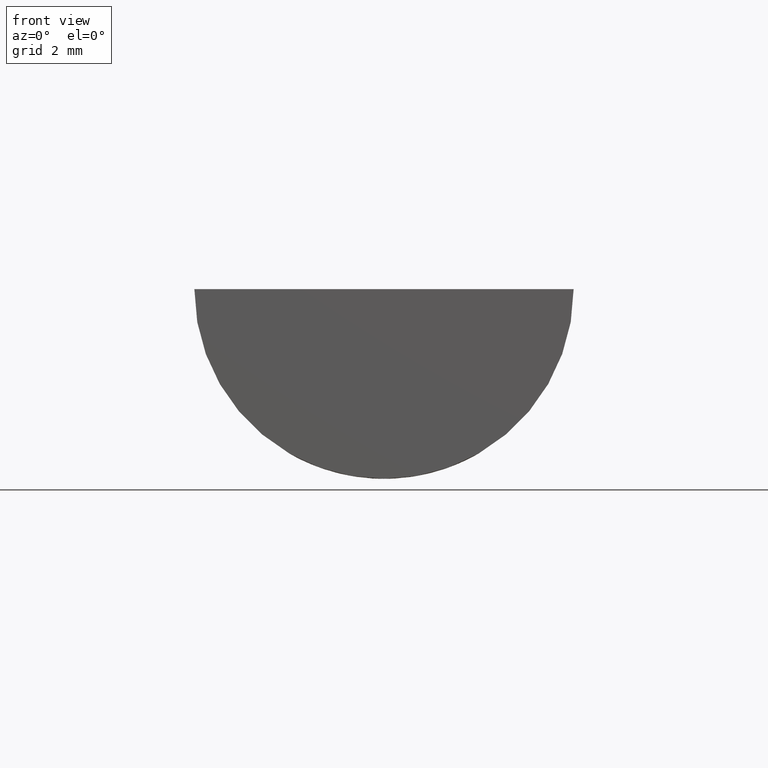
[diagram: clean part render]
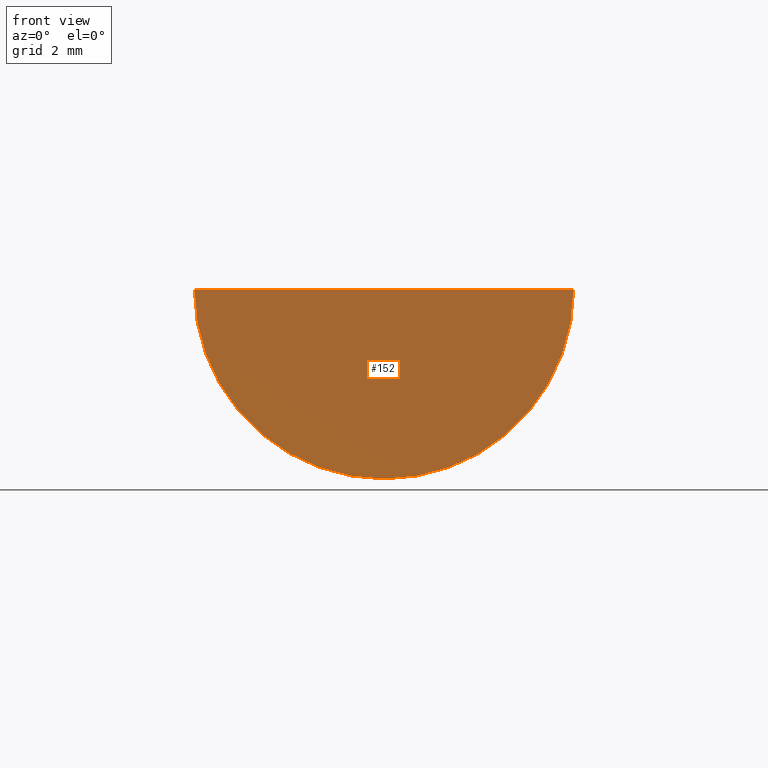
[diagram: same view with one face highlighted and labeled with its STEP entity id]
A machine part, front view. The second image highlights one B-rep face of the part: STEP entity #152.
In plain terms, the highlighted planar face has unit normal (0, -1, 0).
Its self-contained STEP definition (entity closure, byte-faithful):
#18=CARTESIAN_POINT('',(6.999999401001860,-15.000001553999937,-0.000003814999682));
#19=VERTEX_POINT('',#18);
#26=CARTESIAN_POINT('',(-6.999997490998146,-15.000001553999937,0.000003814998640));
#27=VERTEX_POINT('',#26);
#28=CARTESIAN_POINT('',(0.000000955008075,-15.000001553999937,0.000011410006200));
#29=DIRECTION('',(0.0,-1.0,6.123234E-017));
#30=DIRECTION('',(1.0,0.0,0.0));
#31=AXIS2_PLACEMENT_3D('',#28,#29,#30);
#32=CIRCLE('',#31,6.999998446010341);
#33=EDGE_CURVE('',#27,#19,#32,.T.);
#97=CARTESIAN_POINT('',(6.999999401001860,-15.000001553999937,-0.000003814999682));
#98=DIRECTION('',(-0.999999999999852,0.0,0.000000545000001));
#99=VECTOR('',#98,13.999996892002077);
#100=LINE('',#97,#99);
#101=EDGE_CURVE('',#19,#27,#100,.T.);
#143=CARTESIAN_POINT('',(-8.400117182650140,-15.000001553999937,-7.700106123539294));
#144=DIRECTION('',(0.0,-1.0,0.0));
#145=DIRECTION('',(1.0,0.0,0.0));
#146=AXIS2_PLACEMENT_3D('',#143,#144,#145);
#147=PLANE('',#146);
#148=ORIENTED_EDGE('',*,*,#33,.T.);
#149=ORIENTED_EDGE('',*,*,#101,.T.);
#150=EDGE_LOOP('',(#148,#149));
#151=FACE_OUTER_BOUND('',#150,.T.);
#152=ADVANCED_FACE('',(#151),#147,.T.);